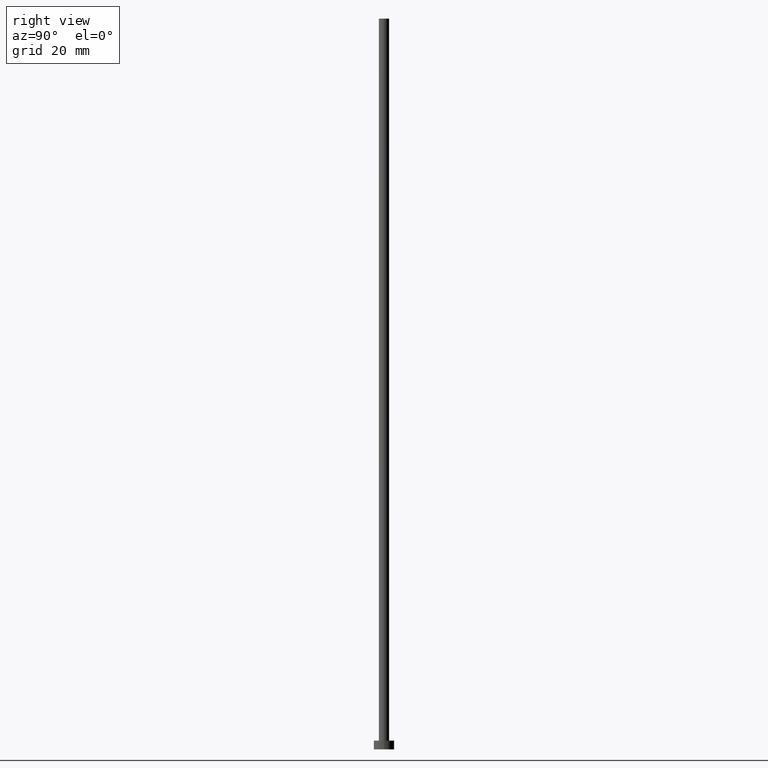
[diagram: clean part render]
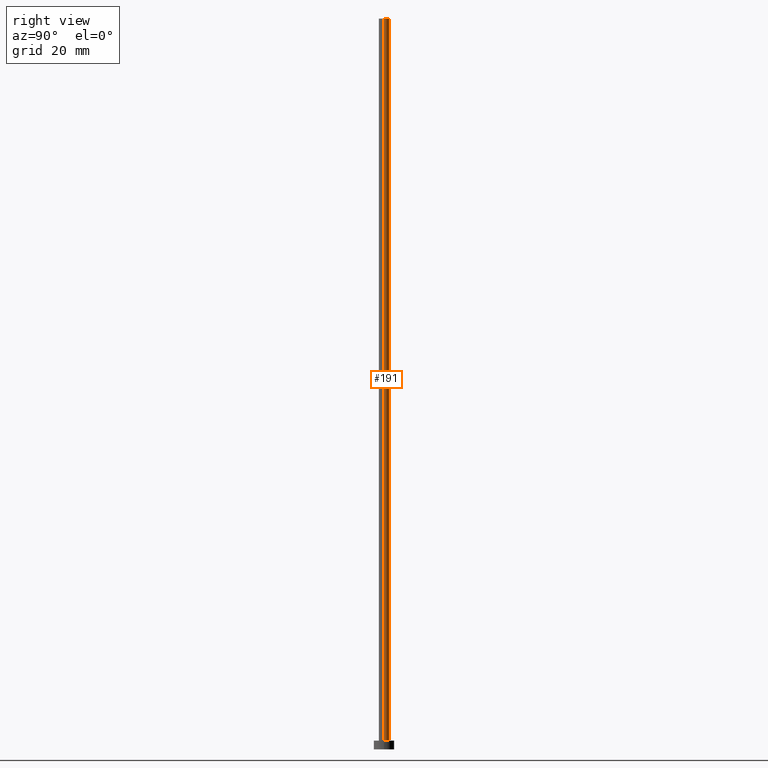
[diagram: same view with one face highlighted and labeled with its STEP entity id]
A machine part, right view. The second image highlights one B-rep face of the part: STEP entity #191.
In plain terms, the highlighted cylindrical surface (edge-blend (fillet) strip) has radius 1.75 mm, axis along (-0, -0, -1).
Its self-contained STEP definition (entity closure, byte-faithful):
#8 = DIRECTION ( 'NONE',  ( 1.000000000000000000, 0.000000000000000000, 0.000000000000000000 ) ) ;
#10 = CARTESIAN_POINT ( 'NONE',  ( -1.750000000000000000, 0.000000000000000000, 250.0000000000000000 ) ) ;
#11 = CYLINDRICAL_SURFACE ( 'NONE', #217, 1.750000000000000000 ) ;
#14 = EDGE_CURVE ( 'NONE', #244, #45, #198, .T. ) ;
#25 = CARTESIAN_POINT ( 'NONE',  ( 0.000000000000000000, 0.000000000000000000, 3.000000000000000000 ) ) ;
#27 = EDGE_CURVE ( 'NONE', #220, #39, #57, .T. ) ;
#28 = DIRECTION ( 'NONE',  ( -0.000000000000000000, -0.000000000000000000, -1.000000000000000000 ) ) ;
#34 = LINE ( 'NONE', #246, #212 ) ;
#39 = VERTEX_POINT ( 'NONE', #90 ) ;
#43 = DIRECTION ( 'NONE',  ( 1.000000000000000000, 0.000000000000000000, 0.000000000000000000 ) ) ;
#45 = VERTEX_POINT ( 'NONE', #10 ) ;
#50 = AXIS2_PLACEMENT_3D ( 'NONE', #25, #184, #8 ) ;
#57 = CIRCLE ( 'NONE', #50, 1.750000000000000000 ) ;
#75 = DIRECTION ( 'NONE',  ( -0.000000000000000000, -0.000000000000000000, -1.000000000000000000 ) ) ;
#88 = ORIENTED_EDGE ( 'NONE', *, *, #151, .T. ) ;
#90 = CARTESIAN_POINT ( 'NONE',  ( -1.750000000000000000, 0.000000000000000000, 3.000000000000000000 ) ) ;
#91 = FACE_OUTER_BOUND ( 'NONE', #185, .T. ) ;
#95 = CARTESIAN_POINT ( 'NONE',  ( 0.000000000000000000, 0.000000000000000000, 250.0000000000000000 ) ) ;
#103 = ORIENTED_EDGE ( 'NONE', *, *, #14, .F. ) ;
#124 = ORIENTED_EDGE ( 'NONE', *, *, #27, .T. ) ;
#131 = LINE ( 'NONE', #206, #189 ) ;
#132 = AXIS2_PLACEMENT_3D ( 'NONE', #149, #221, #43 ) ;
#149 = CARTESIAN_POINT ( 'NONE',  ( 0.000000000000000000, 0.000000000000000000, 250.0000000000000000 ) ) ;
#151 = EDGE_CURVE ( 'NONE', #244, #220, #34, .T. ) ;
#160 = CARTESIAN_POINT ( 'NONE',  ( 1.750000000000000000, 2.143131898507868297E-16, 250.0000000000000000 ) ) ;
#171 = EDGE_CURVE ( 'NONE', #45, #39, #131, .T. ) ;
#172 = CARTESIAN_POINT ( 'NONE',  ( 1.750000000000000000, 2.143131898507868297E-16, 3.000000000000000000 ) ) ;
#184 = DIRECTION ( 'NONE',  ( 0.000000000000000000, 0.000000000000000000, 1.000000000000000000 ) ) ;
#185 = EDGE_LOOP ( 'NONE', ( #103, #88, #124, #205 ) ) ;
#189 = VECTOR ( 'NONE', #28, 1000.000000000000000 ) ;
#191 = ADVANCED_FACE ( 'NONE', ( #91 ), #11, .T. ) ;
#198 = CIRCLE ( 'NONE', #132, 1.750000000000000000 ) ;
#205 = ORIENTED_EDGE ( 'NONE', *, *, #171, .F. ) ;
#206 = CARTESIAN_POINT ( 'NONE',  ( -1.750000000000000000, 0.000000000000000000, 250.0000000000000000 ) ) ;
#207 = DIRECTION ( 'NONE',  ( -1.000000000000000000, 0.000000000000000000, 0.000000000000000000 ) ) ;
#212 = VECTOR ( 'NONE', #75, 1000.000000000000000 ) ;
#217 = AXIS2_PLACEMENT_3D ( 'NONE', #95, #230, #207 ) ;
#220 = VERTEX_POINT ( 'NONE', #172 ) ;
#221 = DIRECTION ( 'NONE',  ( 0.000000000000000000, 0.000000000000000000, 1.000000000000000000 ) ) ;
#230 = DIRECTION ( 'NONE',  ( -0.000000000000000000, -0.000000000000000000, -1.000000000000000000 ) ) ;
#244 = VERTEX_POINT ( 'NONE', #160 ) ;
#246 = CARTESIAN_POINT ( 'NONE',  ( 1.750000000000000000, 2.143131898507868297E-16, 250.0000000000000000 ) ) ;